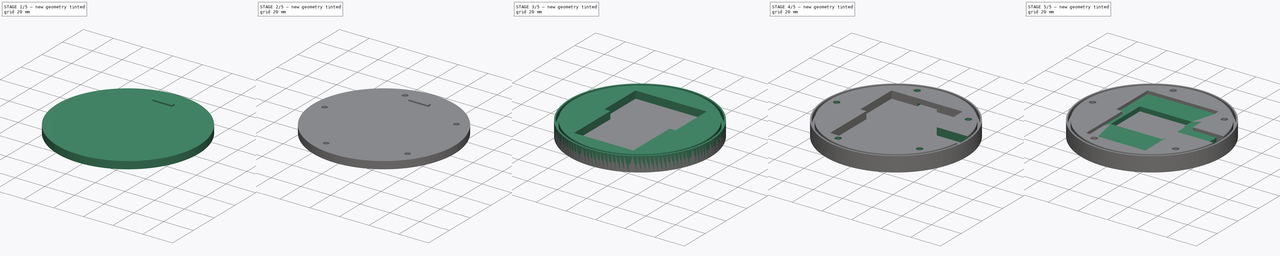
[diagram: build sequence overview — one tinted view per stage of 5, left to right]
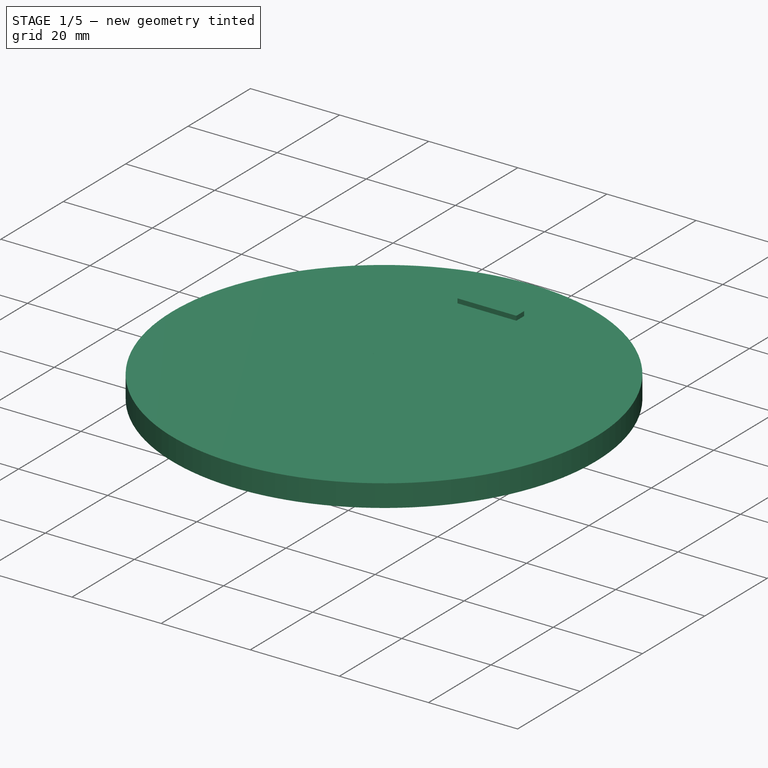
[diagram: stage 1 of 5 — iso view after this stage's code; geometry added in this stage tinted green]
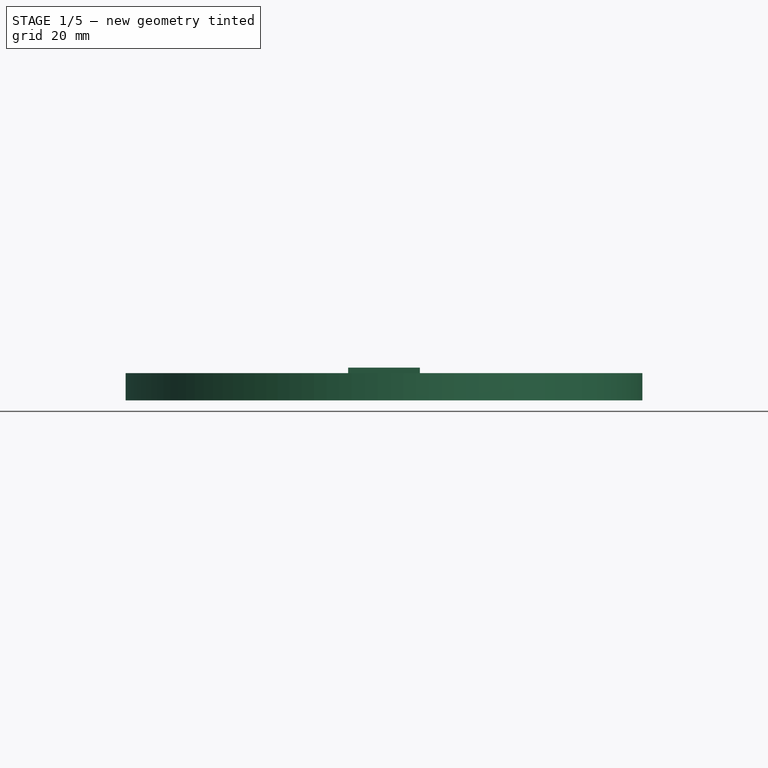
[diagram: stage 1 of 5 — front view after this stage's code; geometry added in this stage tinted green]
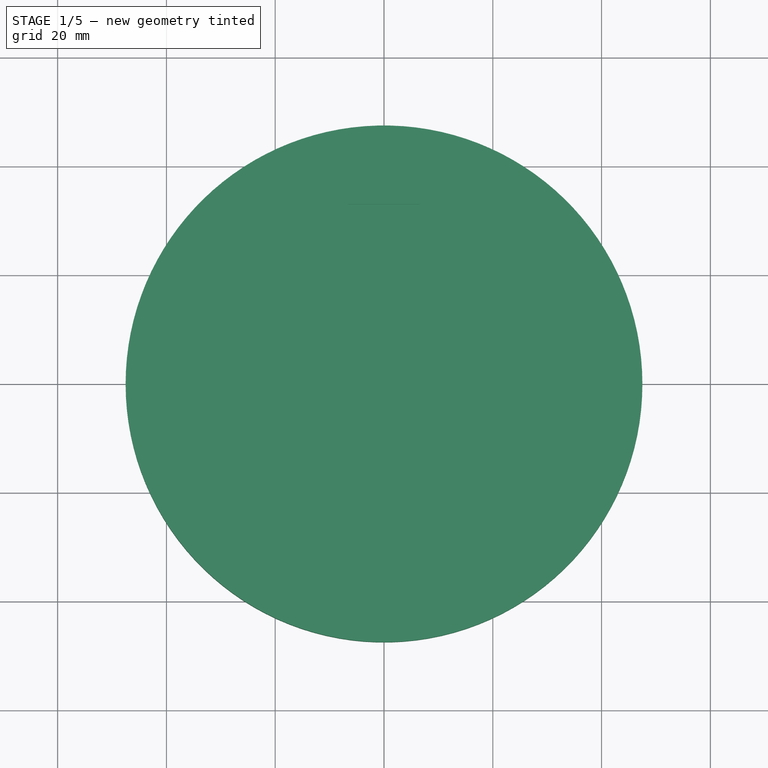
[diagram: stage 1 of 5 — top view after this stage's code; geometry added in this stage tinted green]
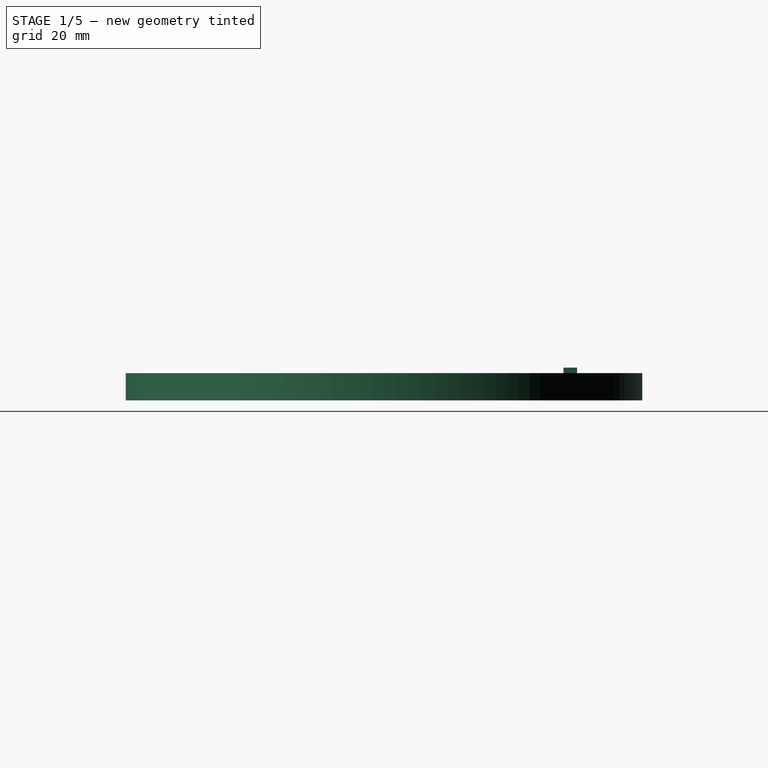
[diagram: stage 1 of 5 — right view after this stage's code; geometry added in this stage tinted green]
FCSTD DOCUMENT  (FreeCAD 0.19R24276 (Git))
Label: NecklaceCase
License: All rights reserved
LicenseURL: http://en.wikipedia.org/wiki/All_rights_reserved
objects: Sketcher::SketchObject×26, PartDesign::Pocket×16, PartDesign::Pad×9, PartDesign::Body×5, Part::Feature×1
note: 82 computed .brp shape members not serialized (recipe doc carries the construction recipe); baked Part::Feature solids carry a one-line shape summary decoded from their .brp

FEATURE [Sketcher::SketchObject] Sketch008
  FullyConstrained = true
  MapMode = 5
  Support = -> [XY_Plane003]
  sketch-geometry (1):
    g0: Circle CenterX=0 CenterY=0 CenterZ=0 NormalX=0 NormalY=0 NormalZ=1 AngleXU=0 Radius=47.5
  constraints (2):
    c: Coincident(g0,g-1)
    c: Diameter(g0) = 95
FEATURE [PartDesign::Pad] Pad004
  Direction = (1,1,1)
  Length = 5
  Length2 = 100
  Profile = -> Sketch008
  Type = 0
FEATURE [PartDesign::Body] Body003  label="attachment layer"
  Group = -> [Sketch008,Pad004,Sketch009,Pocket002,Sketch015,Pocket008,Sketch022,Pad006]
  Origin = -> Origin003
  Tip = -> Pad006
FEATURE [Sketcher::SketchObject] Sketch024
  FullyConstrained = true
  MapMode = 5
  Support = -> [XY_Plane004]
  sketch-geometry (1):
    g0: Circle CenterX=0 CenterY=0 CenterZ=0 NormalX=0 NormalY=0 NormalZ=1 AngleXU=0 Radius=47.5
  constraints (2):
    c: Coincident(g0,g-1)
    c: Diameter(g0) = 95
FEATURE [PartDesign::Pad] Pad007
  Direction = (1,1,1)
  Length = 5
  Length2 = 100
  Profile = -> Sketch024
  Type = 0
FEATURE [Sketcher::SketchObject] Sketch025
  FullyConstrained = true
  MapMode = 5
  Placement = pos=(0,0,5) rot=(0,0,1;0rad)
  Support = -> [Pad007]
  sketch-geometry (4):
    g0: LineSegment StartX=-6.75 StartY=23 StartZ=0 EndX=6.75 EndY=23 EndZ=0
    g1: LineSegment StartX=6.75 StartY=23 StartZ=0 EndX=6.75 EndY=-23 EndZ=0
    g2: LineSegment StartX=6.75 StartY=-23 StartZ=0 EndX=-6.75 EndY=-23 EndZ=0
    g3: LineSegment StartX=-6.75 StartY=-23 StartZ=0 EndX=-6.75 EndY=23 EndZ=0
  constraints (10):
    c: Coincident(g0,g1)
    c: Coincident(g1,g2)
    c: Coincident(g2,g3)
    c: Coincident(g3,g0)
    c: Horizontal(g0)
    c: Vertical(g1)
    c: DistanceX(g2,g2) = 13.5
    c: DistanceY(g1,g1) = 46
    c: Symmetric(g0,g2,g-1)
    c: Symmetric(g2,g1,g-2)
FEATURE [PartDesign::Pocket] Pocket014
  BaseFeature = -> Pad007
  Length = 2.5
  Length2 = 100
  Profile = -> Sketch025
  Type = 0
FEATURE [Sketcher::SketchObject] Sketch026
  FullyConstrained = true
  MapMode = 5
  Placement = pos=(0,0,5) rot=(0,0,1;0rad)
  Support = -> [Pocket014]
  sketch-geometry (5):
    g0: Circle CenterX=-40 CenterY=0 CenterZ=0 NormalX=0 NormalY=0 NormalZ=1 AngleXU=0 Radius=1.75
    g1: Circle CenterX=-12.364 CenterY=38.0412 CenterZ=0 NormalX=0 NormalY=0 NormalZ=1 AngleXU=0 Radius=1.75
    g2: Circle CenterX=32.3566 CenterY=23.5171 CenterZ=0 NormalX=0 NormalY=0 NormalZ=1 AngleXU=0 Radius=1.75
    g3: Circle CenterX=32.3668 CenterY=-23.5029 CenterZ=0 NormalX=0 NormalY=0 NormalZ=1 AngleXU=0 Radius=1.75
    g4: Circle CenterX=-12.3474 CenterY=-38.0466 CenterZ=0 NormalX=0 NormalY=0 NormalZ=1 AngleXU=0 Radius=1.75
  constraints (15):
    c: Diameter(g0) = 3.5
    c: Diameter(g1) = 3.5
    c: Diameter(g2) = 3.5
    c: Diameter(g3) = 3.5
    c: Diameter(g4) = 3.5
    c: DistanceY(g-1,g0) = 0
    c: Distance(g-1,g0) = 40
    c: Distance(g-1,g1) = 40
    c: Distance(g2,g-1) = 40
    c: Distance(g-1,g3) = 40
    c: Distance(g4,g-1) = 40
    c: Distance(g0,g1) = 47.02
    c: Distance(g1,g2) = 47.02
    c: Distance(g2,g3) = 47.02
    c: Distance(g4,g3) = 47.02
FEATURE [PartDesign::Pocket] Pocket015
  BaseFeature = -> Pocket014
  Length = 5
  Length2 = 100
  Profile = -> Sketch026
  Type = 0
FEATURE [Sketcher::SketchObject] Sketch023
  FullyConstrained = true
  MapMode = 5
  Placement = pos=(0,0,5) rot=(0,0,1;0rad)
  Support = -> [Pocket015]
  sketch-geometry (4):
    g0: LineSegment StartX=-6.6 StartY=35.5 StartZ=0 EndX=6.6 EndY=35.5 EndZ=0
    g1: LineSegment StartX=6.6 StartY=35.5 StartZ=0 EndX=6.6 EndY=33 EndZ=0
    g2: LineSegment StartX=6.6 StartY=33 StartZ=0 EndX=-6.6 EndY=33 EndZ=0
    g3: LineSegment StartX=-6.6 StartY=33 StartZ=0 EndX=-6.6 EndY=35.5 EndZ=0
  constraints (11):
    c: Coincident(g0,g1)
    c: Coincident(g1,g2)
    c: Coincident(g2,g3)
    c: Coincident(g3,g0)
    c: Horizontal(g0)
    c: Vertical(g1)
    c: Vertical(g3)
    c: DistanceX(g0,g0) = 13.2
    c: DistanceY(g1,g1) = 2.5
    c: Symmetric(g2,g1,g-2)
    c: DistanceY(g-1,g1) = 33
FEATURE [PartDesign::Pad] Pad008
  BaseFeature = -> Pocket015
  Direction = (1,1,1)
  Length = 1
  Length2 = 100
  Profile = -> Sketch023
  Type = 0
FEATURE [PartDesign::Body] Body004  label="attachment magnetic"
  Group = -> [Sketch024,Pad007,Sketch025,Pocket014,Sketch026,Pocket015,Sketch023,Pad008]
  Origin = -> Origin004
  Tip = -> Pad008
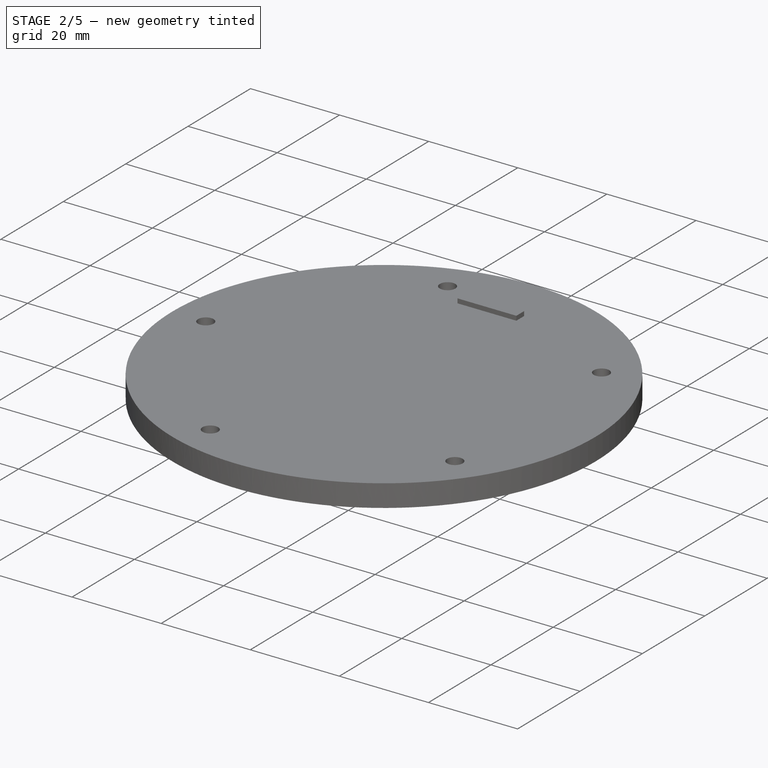
[diagram: stage 2 of 5 — iso view after this stage's code; geometry added in this stage tinted green]
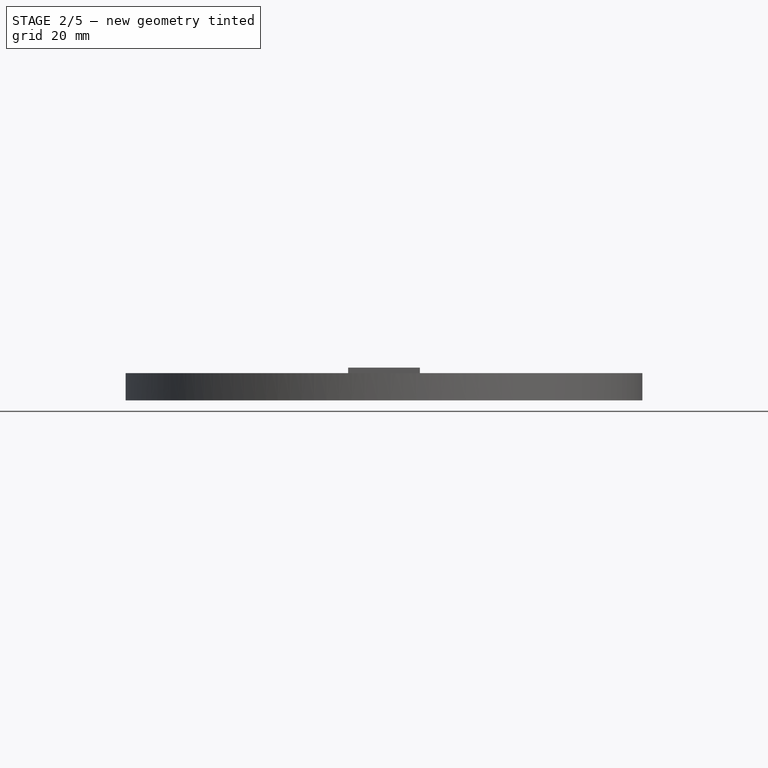
[diagram: stage 2 of 5 — front view after this stage's code; geometry added in this stage tinted green]
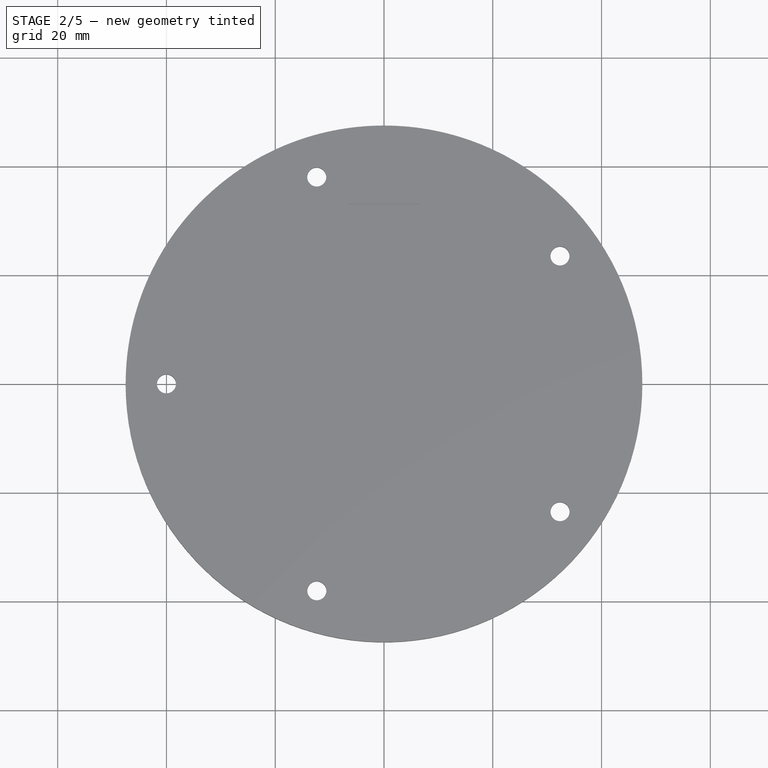
[diagram: stage 2 of 5 — top view after this stage's code; geometry added in this stage tinted green]
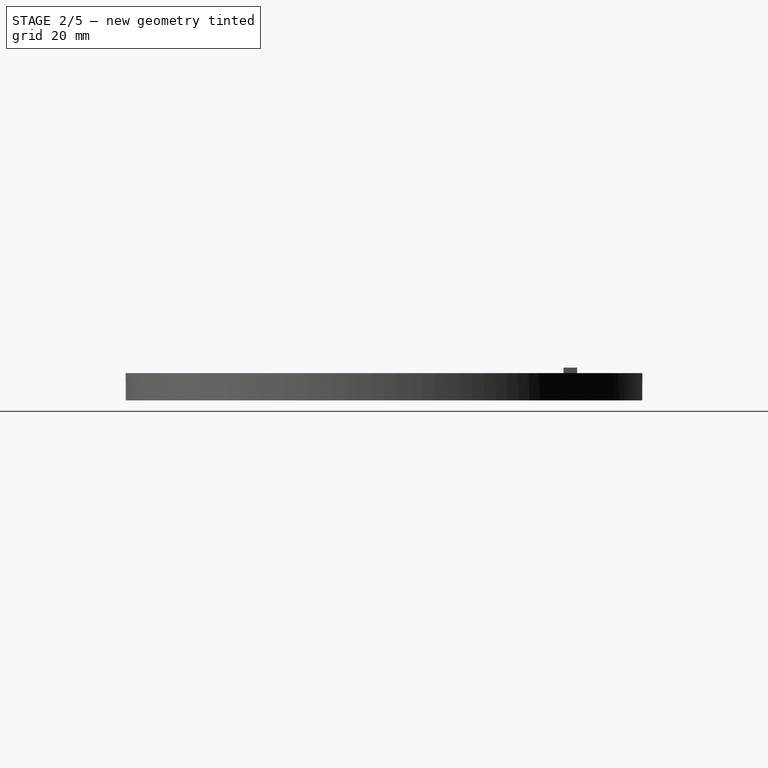
[diagram: stage 2 of 5 — right view after this stage's code; geometry added in this stage tinted green]
FEATURE [Sketcher::SketchObject] Sketch003
  FullyConstrained = true
  MapMode = 5
  Support = -> [XY_Plane001]
  sketch-geometry (1):
    g0: Circle CenterX=0 CenterY=0 CenterZ=0 NormalX=0 NormalY=0 NormalZ=1 AngleXU=0 Radius=47.5
  constraints (2):
    c: Coincident(g-1,g0)
    c: Diameter(g0) = 95
FEATURE [PartDesign::Pad] Pad001
  Direction = (1,1,1)
  Length = 2
  Length2 = 100
  Profile = -> Sketch003
  Type = 0
FEATURE [Sketcher::SketchObject] Sketch009
  FullyConstrained = true
  MapMode = 5
  Placement = pos=(0,0,5) rot=(0,0,1;0rad)
  Support = -> [Pad004]
  sketch-geometry (2):
    g0: Circle CenterX=-70 CenterY=0 CenterZ=0 NormalX=0 NormalY=0 NormalZ=1 AngleXU=0 Radius=40
    g1: Circle CenterX=-70 CenterY=0 CenterZ=0 NormalX=0 NormalY=0 NormalZ=1 AngleXU=0 Radius=35
  constraints (6):
    c: PointOnObject(g0,g-1)
    c: PointOnObject(g1,g-1)
    c: Diameter(g0) = 80
    c: Diameter(g1) = 70
    c: DistanceX(g0,g-1) = 70
    c: DistanceX(g1,g-1) = 70
FEATURE [PartDesign::Pocket] Pocket002
  BaseFeature = -> Pad004
  Length = 3
  Length2 = 100
  Profile = -> Sketch009
  Type = 0
FEATURE [Sketcher::SketchObject] Sketch012
  FullyConstrained = true
  MapMode = 5
  Placement = pos=(0,0,2) rot=(0,0,1;0rad)
  Support = -> [Pad001]
  sketch-geometry (6):
    g0: Circle CenterX=-12.364 CenterY=38.0412 CenterZ=0 NormalX=0 NormalY=0 NormalZ=1 AngleXU=0 Radius=1.75
    g1: Circle CenterX=-12.3474 CenterY=-38.0466 CenterZ=0 NormalX=0 NormalY=0 NormalZ=1 AngleXU=0 Radius=1.75
    g2: Circle CenterX=-40 CenterY=0 CenterZ=0 NormalX=0 NormalY=0 NormalZ=1 AngleXU=0 Radius=1.75
    g3: Circle CenterX=32.3566 CenterY=23.5171 CenterZ=0 NormalX=0 NormalY=0 NormalZ=1 AngleXU=0 Radius=1.75
    g4: Circle CenterX=32.3668 CenterY=-23.5029 CenterZ=0 NormalX=0 NormalY=0 NormalZ=1 AngleXU=0 Radius=1.75
    g5: Circle CenterX=0 CenterY=0 CenterZ=0 NormalX=0 NormalY=0 NormalZ=1 AngleXU=0 Radius=40
  constraints (17):
    c: PointOnObject(g2,g-1)
    c: Diameter(g2) = 3.5
    c: Diameter(g3) = 3.5
    c: Diameter(g0) = 3.5
    c: Diameter(g4) = 3.5
    c: Diameter(g1) = 3.5
    c: DistanceX(g2,g-1) = 40
    c: Radius(g5) = 40
    c: Coincident(g5,g-1)
    c: Distance(g0,g-1) = 40
    c: Distance(g-1,g3) = 40
    c: Distance(g-1,g4) = 40
    c: Distance(g-1,g1) = 40
    c: Distance(g2,g0) = 47.02
    c: Distance(g0,g3) = 47.02
    c: Distance(g3,g4) = 47.02
    c: Distance(g4,g1) = 47.02
FEATURE [PartDesign::Pocket] Pocket005
  BaseFeature = -> Pad001
  Length = 5
  Length2 = 100
  Profile = -> Sketch012
  Type = 0
FEATURE [Sketcher::SketchObject] Sketch015
  FullyConstrained = true
  MapMode = 5
  Placement = pos=(0,0,5) rot=(0,0,1;0rad)
  Support = -> [Pocket002]
  sketch-geometry (5):
    g0: Circle CenterX=-40 CenterY=0 CenterZ=0 NormalX=0 NormalY=0 NormalZ=1 AngleXU=0 Radius=1.75
    g1: Circle CenterX=-12.364 CenterY=38.0412 CenterZ=0 NormalX=0 NormalY=0 NormalZ=1 AngleXU=0 Radius=1.75
    g2: Circle CenterX=32.3566 CenterY=23.5171 CenterZ=0 NormalX=0 NormalY=0 NormalZ=1 AngleXU=0 Radius=1.75
    g3: Circle CenterX=32.3668 CenterY=-23.5029 CenterZ=0 NormalX=0 NormalY=0 NormalZ=1 AngleXU=0 Radius=1.75
    g4: Circle CenterX=-12.3474 CenterY=-38.0466 CenterZ=0 NormalX=0 NormalY=0 NormalZ=1 AngleXU=0 Radius=1.75
  constraints (15):
    c: Diameter(g0) = 3.5
    c: Diameter(g1) = 3.5
    c: Diameter(g2) = 3.5
    c: Diameter(g3) = 3.5
    c: Diameter(g4) = 3.5
    c: DistanceY(g-1,g0) = 0
    c: Distance(g-1,g0) = 40
    c: Distance(g-1,g1) = 40
    c: Distance(g2,g-1) = 40
    c: Distance(g-1,g3) = 40
    c: Distance(g4,g-1) = 40
    c: Distance(g0,g1) = 47.02
    c: Distance(g1,g2) = 47.02
    c: Distance(g2,g3) = 47.02
    c: Distance(g4,g3) = 47.02
FEATURE [PartDesign::Pocket] Pocket008
  BaseFeature = -> Pocket002
  Length = 5
  Length2 = 100
  Profile = -> Sketch015
  Type = 0
FEATURE [PartDesign::Body] Body001  label="top"
  Group = -> [Sketch003,Pad001,Sketch012,Pocket005,Sketch021,Pocket013]
  Origin = -> Origin001
  Placement = pos=(0,0,23) rot=(0,0,1;0rad)
  Tip = -> Pocket013
FEATURE [Sketcher::SketchObject] Sketch022
  FullyConstrained = true
  MapMode = 5
  Placement = pos=(0,0,5) rot=(0,0,1;0rad)
  Support = -> [Pocket008]
  sketch-geometry (4):
    g0: LineSegment StartX=-6.6 StartY=35.5 StartZ=0 EndX=6.6 EndY=35.5 EndZ=0
    g1: LineSegment StartX=6.6 StartY=35.5 StartZ=0 EndX=6.6 EndY=33 EndZ=0
    g2: LineSegment StartX=6.6 StartY=33 StartZ=0 EndX=-6.6 EndY=33 EndZ=0
    g3: LineSegment StartX=-6.6 StartY=33 StartZ=0 EndX=-6.6 EndY=35.5 EndZ=0
  constraints (11):
    c: Coincident(g0,g1)
    c: Coincident(g1,g2)
    c: Coincident(g2,g3)
    c: Coincident(g3,g0)
    c: Horizontal(g0)
    c: Vertical(g1)
    c: Vertical(g3)
    c: DistanceX(g0,g0) = 13.2
    c: DistanceY(g1,g1) = 2.5
    c: Symmetric(g2,g1,g-2)
    c: DistanceY(g-1,g1) = 33
FEATURE [PartDesign::Pad] Pad006
  BaseFeature = -> Pocket008
  Direction = (1,1,1)
  Length = 1
  Length2 = 100
  Profile = -> Sketch022
  Type = 0
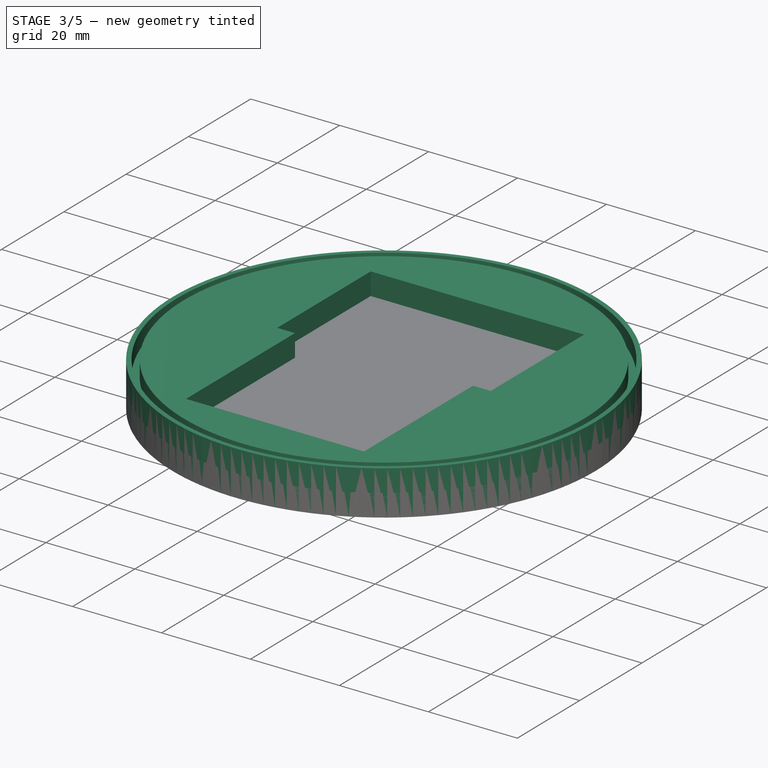
[diagram: stage 3 of 5 — iso view after this stage's code; geometry added in this stage tinted green]
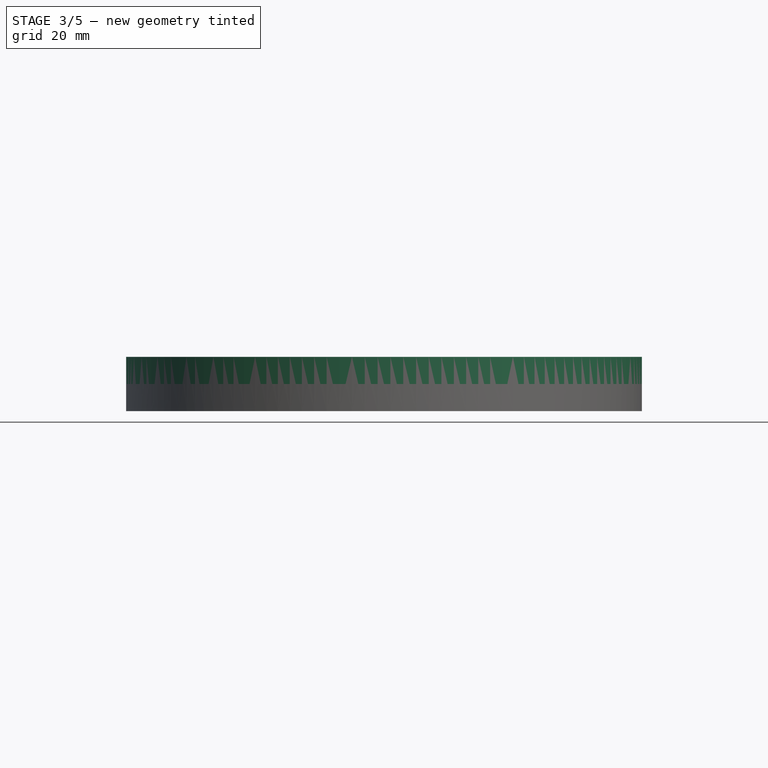
[diagram: stage 3 of 5 — front view after this stage's code; geometry added in this stage tinted green]
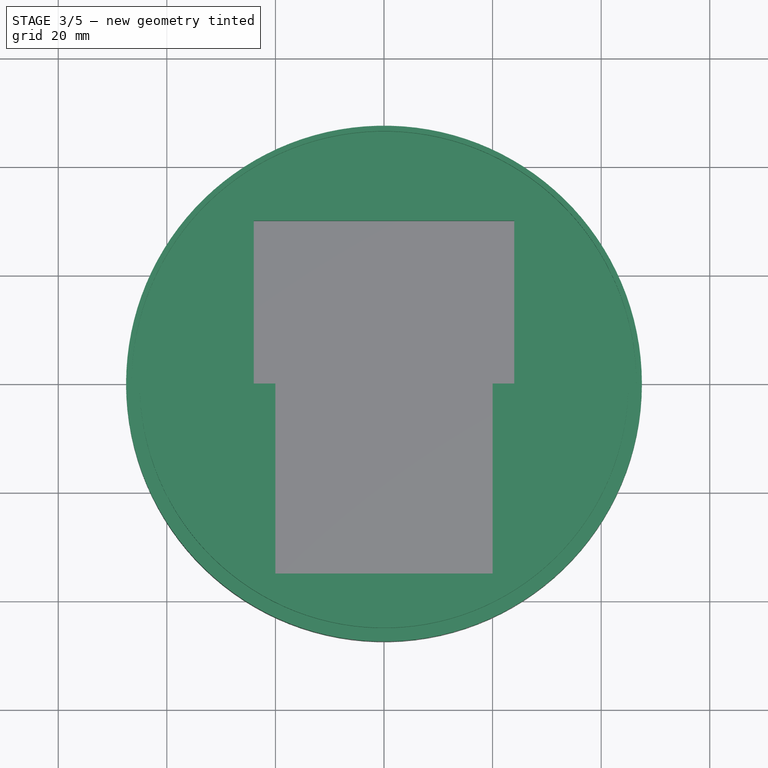
[diagram: stage 3 of 5 — top view after this stage's code; geometry added in this stage tinted green]
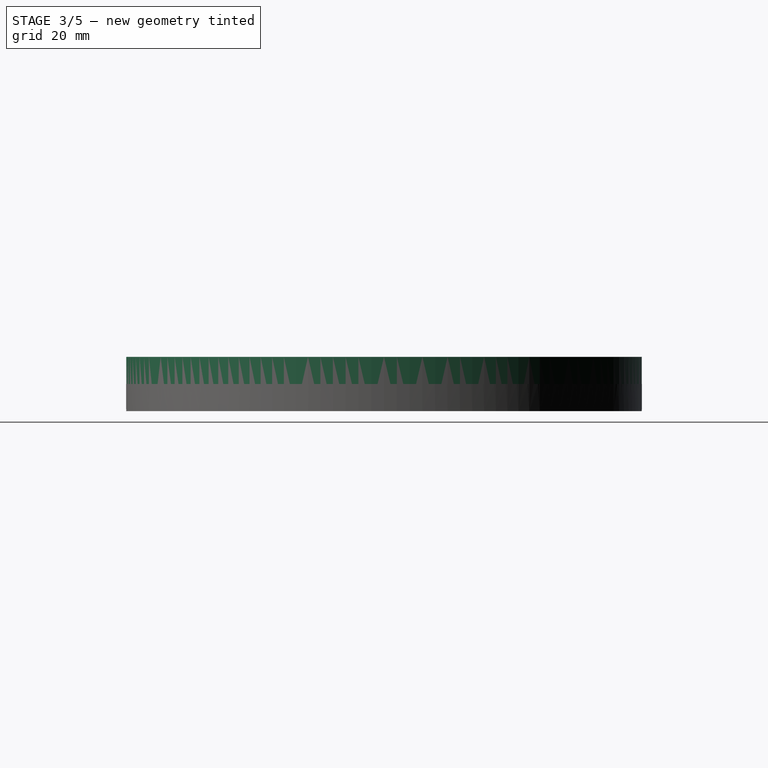
[diagram: stage 3 of 5 — right view after this stage's code; geometry added in this stage tinted green]
FEATURE [Sketcher::SketchObject] Sketch004
  FullyConstrained = true
  MapMode = 5
  Support = -> [XY_Plane]
  sketch-geometry (1):
    g0: Circle CenterX=0 CenterY=0 CenterZ=0 NormalX=0 NormalY=0 NormalZ=1 AngleXU=0 Radius=47.5
  constraints (2):
    c: Diameter(g0) = 95
    c: Coincident(g0,g-1)
FEATURE [Sketcher::SketchObject] Sketch005
  FullyConstrained = true
  MapMode = 5
  Support = -> [XY_Plane002]
  sketch-geometry (1):
    g0: Circle CenterX=0 CenterY=0 CenterZ=0 NormalX=0 NormalY=0 NormalZ=1 AngleXU=0 Radius=47.5
  constraints (2):
    c: Coincident(g0,g-1)
    c: Diameter(g0) = 95
FEATURE [PartDesign::Pad] Pad002
  Direction = (1,1,1)
  Length = 10
  Length2 = 100
  Profile = -> Sketch005
  Type = 0
FEATURE [Sketcher::SketchObject] Sketch006
  FullyConstrained = true
  MapMode = 5
  Placement = pos=(0,0,10) rot=(0,0,1;0rad)
  Support = -> [Pad002]
  sketch-geometry (1):
    g0: Circle CenterX=0 CenterY=0 CenterZ=0 NormalX=0 NormalY=0 NormalZ=1 AngleXU=0 Radius=46.5
  constraints (2):
    c: Coincident(g0,g-1)
    c: Diameter(g0) = 93
FEATURE [PartDesign::Pocket] Pocket001
  BaseFeature = -> Pad002
  Length = 3.5
  Length2 = 100
  Profile = -> Sketch006
  Type = 0
FEATURE [Sketcher::SketchObject] Sketch007
  FullyConstrained = true
  MapMode = 5
  Placement = pos=(0,0,6.5) rot=(0,0,1;0rad)
  Support = -> [Pocket001]
  sketch-geometry (1):
    g0: Circle CenterX=0 CenterY=0 CenterZ=0 NormalX=0 NormalY=0 NormalZ=1 AngleXU=0 Radius=45
  constraints (2):
    c: Coincident(g0,g-1)
    c: Diameter(g0) = 90
FEATURE [PartDesign::Pad] Pad003
  BaseFeature = -> Pocket001
  Direction = (1,1,1)
  Length = 3.5
  Length2 = 100
  Profile = -> Sketch007
  Type = 0
FEATURE [Sketcher::SketchObject] Sketch010
  FullyConstrained = true
  MapMode = 5
  Placement = pos=(0,0,10) rot=(0,0,1;0rad)
  Support = -> [Pad003]
  sketch-geometry (8):
    g0: LineSegment StartX=20 StartY=0 StartZ=0 EndX=20 EndY=-35 EndZ=0
    g1: LineSegment StartX=20 StartY=-35 StartZ=0 EndX=-20 EndY=-35 EndZ=0
    g2: LineSegment StartX=-20 StartY=-35 StartZ=0 EndX=-20 EndY=0 EndZ=0
    g3: LineSegment StartX=-24 StartY=30 StartZ=0 EndX=24 EndY=30 EndZ=0
    g4: LineSegment StartX=24 StartY=30 StartZ=0 EndX=24 EndY=0 EndZ=0
    g5: LineSegment StartX=-24 StartY=0 StartZ=0 EndX=-24 EndY=30 EndZ=0
    g6: LineSegment StartX=20 StartY=0 StartZ=0 EndX=24 EndY=0 EndZ=0
    g7: LineSegment StartX=-24 StartY=0 StartZ=0 EndX=-20 EndY=0 EndZ=0
  constraints (24):
    c: Coincident(g0,g1)
    c: Coincident(g1,g2)
    c: Horizontal(g1)
    c: Vertical(g0)
    c: Vertical(g2)
    c: DistanceY(g0,g0) = 35
    c: DistanceX(g2,g0) = 40
    c: Coincident(g3,g4)
    c: Coincident(g5,g3)
    c: Horizontal(g3)
    c: Vertical(g4)
    c: Vertical(g5)
    c: DistanceY(g4,g4) = 30
    c: DistanceX(g3,g3) = 48
    c: DistanceX(g5,g-1) = 24
    c: DistanceX(g2,g-1) = 20
    c: DistanceY(g2,g-1) = 0
    c: DistanceY(g-1,g5) = 0
    c: Coincident(g6,g0)
    c: Coincident(g6,g4)
    c: Horizontal(g6)
    c: Coincident(g7,g5)
    c: Coincident(g7,g2)
    c: DistanceY(g4,g-1) = 0
FEATURE [PartDesign::Pocket] Pocket003
  BaseFeature = -> Pad003
  Length = 10
  Length2 = 100
  Profile = -> Sketch010
  Type = 0
FEATURE [PartDesign::Body] Body002  label="bottom"
  Group = -> [Sketch005,Pad002,Sketch006,Pocket001,Sketch007,Pad003,Sketch010,Pocket003,Sketch011,Pocket004,Sketch014,Pocket007,Sketch018,Pocket011,Sketch019,Pocket012,Sketch020,Pad005]
  Origin = -> Origin002
  Placement = pos=(0,0,5) rot=(0,0,1;0rad)
  Tip = -> Pad005
FEATURE [Sketcher::SketchObject] Sketch021
  FullyConstrained = true
  MapMode = 5
  Placement = pos=(0,0,2) rot=(0,0,1;0rad)
  Support = -> [Pocket005]
  sketch-geometry (8):
    g0: LineSegment StartX=-9 StartY=12 StartZ=0 EndX=16 EndY=12 EndZ=0
    g1: LineSegment StartX=16 StartY=12 StartZ=0 EndX=16 EndY=8.5 EndZ=0
    g2: LineSegment StartX=16 StartY=8.5 StartZ=0 EndX=-9 EndY=8.5 EndZ=0
    g3: LineSegment StartX=-9 StartY=8.5 StartZ=0 EndX=-9 EndY=12 EndZ=0
    g4: LineSegment StartX=-4 StartY=-8.5 StartZ=0 EndX=16 EndY=-8.5 EndZ=0
    g5: LineSegment StartX=16 StartY=-8.5 StartZ=0 EndX=16 EndY=-12 EndZ=0
    g6: LineSegment StartX=16 StartY=-12 StartZ=0 EndX=-4 EndY=-12 EndZ=0
    g7: LineSegment StartX=-4 StartY=-12 StartZ=0 EndX=-4 EndY=-8.5 EndZ=0
  constraints (24):
    c: Coincident(g0,g1)
    c: Coincident(g1,g2)
    c: Coincident(g2,g3)
    c: Coincident(g3,g0)
    c: Horizontal(g0)
    c: Horizontal(g2)
    c: Vertical(g1)
    c: Vertical(g3)
    c: Coincident(g4,g5)
    c: Coincident(g5,g6)
    c: Coincident(g6,g7)
    c: Coincident(g7,g4)
    c: Horizontal(g4)
    c: Horizontal(g6)
    c: Vertical(g5)
    c: Vertical(g7)
    c: DistanceX(g0,g0) = 25
    c: DistanceX(g4,g4) = 20
    c: DistanceX(g-1,g4) = 16
    c: DistanceX(g-1,g1) = 16
    c: DistanceY(g4,g-1) = 8.5
    c: DistanceY(g-1,g2) = 8.5
    c: DistanceY(g5,g5) = 3.5
    c: DistanceY(g1,g1) = 3.5
FEATURE [PartDesign::Pocket] Pocket013
  BaseFeature = -> Pocket005
  Length = 5
  Length2 = 100
  Profile = -> Sketch021
  Type = 0
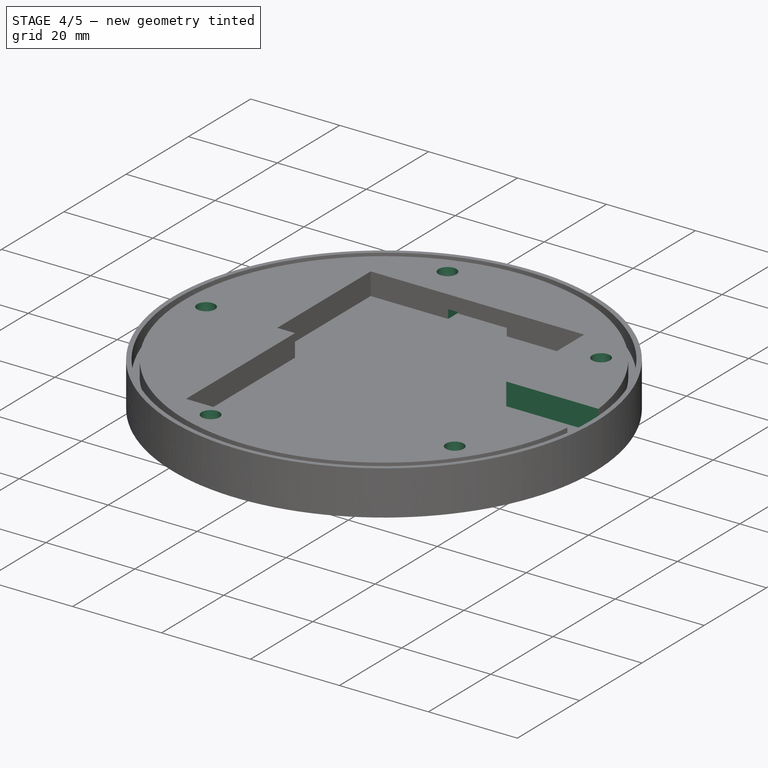
[diagram: stage 4 of 5 — iso view after this stage's code; geometry added in this stage tinted green]
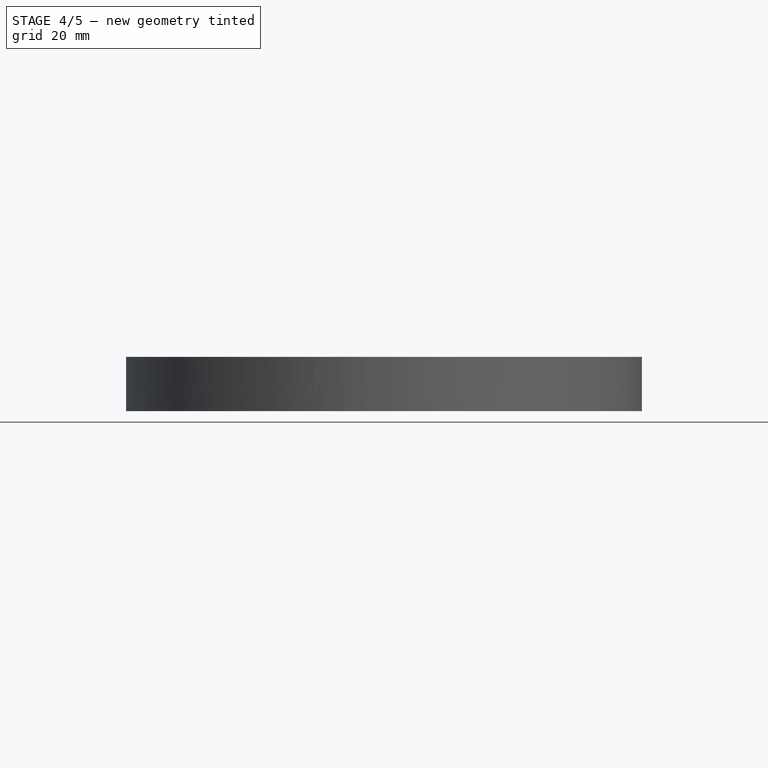
[diagram: stage 4 of 5 — front view after this stage's code; geometry added in this stage tinted green]
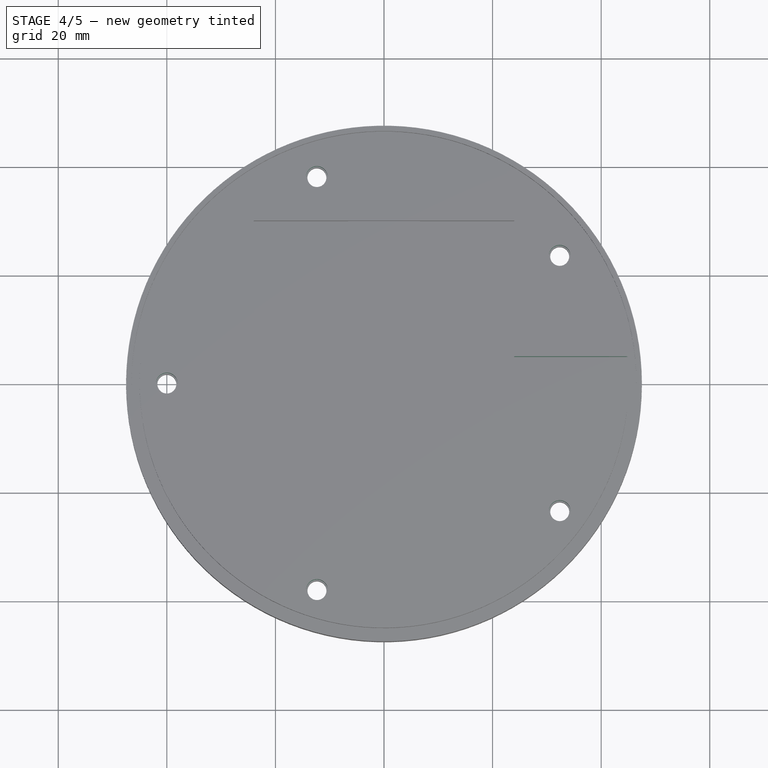
[diagram: stage 4 of 5 — top view after this stage's code; geometry added in this stage tinted green]
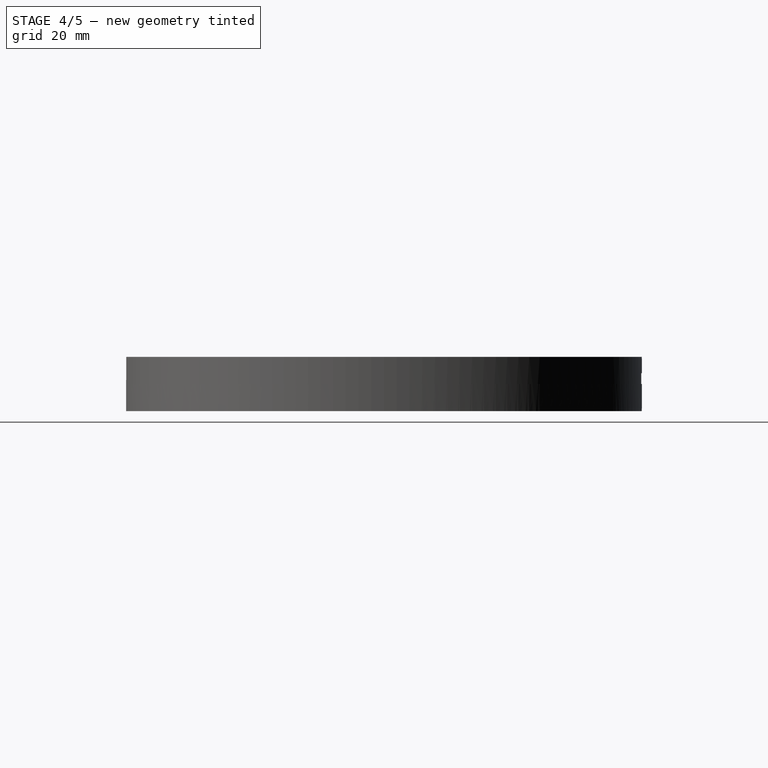
[diagram: stage 4 of 5 — right view after this stage's code; geometry added in this stage tinted green]
FEATURE [Sketcher::SketchObject] Sketch011
  FullyConstrained = true
  MapMode = 5
  Placement = pos=(0,0,10) rot=(0,0,1;0rad)
  Support = -> [Pocket003]
  sketch-geometry (4):
    g0: LineSegment StartX=20 StartY=5 StartZ=0 EndX=45 EndY=5 EndZ=0
    g1: LineSegment StartX=45 StartY=5 StartZ=0 EndX=45 EndY=-5 EndZ=0
    g2: LineSegment StartX=45 StartY=-5 StartZ=0 EndX=20 EndY=-5 EndZ=0
    g3: LineSegment StartX=20 StartY=-5 StartZ=0 EndX=20 EndY=5 EndZ=0
  constraints (12):
    c: Coincident(g0,g1)
    c: Coincident(g1,g2)
    c: Coincident(g2,g3)
    c: Coincident(g3,g0)
    c: Horizontal(g0)
    c: Horizontal(g2)
    c: Vertical(g1)
    c: Vertical(g3)
    c: DistanceY(g1,g1) = 10
    c: DistanceX(g-1,g0) = 45
    c: DistanceX(g-1,g0) = 20
    c: DistanceY(g-1,g0) = 5
FEATURE [PartDesign::Pocket] Pocket004
  BaseFeature = -> Pocket003
  Length = 10
  Length2 = 100
  Profile = -> Sketch011
  Type = 0
FEATURE [Sketcher::SketchObject] Sketch014
  FullyConstrained = true
  MapMode = 5
  Placement = pos=(0,0,10) rot=(0,0,1;0rad)
  Support = -> [Pocket004]
  sketch-geometry (5):
    g0: Circle CenterX=-40 CenterY=0 CenterZ=0 NormalX=0 NormalY=0 NormalZ=1 AngleXU=0 Radius=2
    g1: Circle CenterX=-12.364 CenterY=38.0412 CenterZ=0 NormalX=0 NormalY=0 NormalZ=1 AngleXU=0 Radius=2
    g2: Circle CenterX=32.3566 CenterY=23.5171 CenterZ=0 NormalX=0 NormalY=0 NormalZ=1 AngleXU=0 Radius=2
    g3: Circle CenterX=32.3668 CenterY=-23.5029 CenterZ=0 NormalX=0 NormalY=0 NormalZ=1 AngleXU=0 Radius=2
    g4: Circle CenterX=-12.3474 CenterY=-38.0466 CenterZ=0 NormalX=0 NormalY=0 NormalZ=1 AngleXU=0 Radius=2
  constraints (15):
    c: Diameter(g0) = 4
    c: Diameter(g1) = 4
    c: Diameter(g2) = 4
    c: Diameter(g3) = 4
    c: Diameter(g4) = 4
    c: DistanceY(g-1,g0) = 0
    c: Distance(g0,g-1) = 40
    c: Distance(g1,g-1) = 40
    c: Distance(g2,g-1) = 40
    c: Distance(g3,g-1) = 40
    c: Distance(g-1,g4) = 40
    c: Distance(g0,g1) = 47.02
    c: Distance(g1,g2) = 47.02
    c: Distance(g2,g3) = 47.02
    c: Distance(g3,g4) = 47.02
FEATURE [PartDesign::Pocket] Pocket007
  BaseFeature = -> Pocket004
  Length = 10
  Length2 = 100
  Profile = -> Sketch014
  Type = 0
FEATURE [PartDesign::Body] Body
  Group = -> [Sketch,Pad,Sketch002,Pocket,Sketch004,Sketch013,Pocket006,Sketch016,Pocket009,Sketch017,Pocket010]
  Origin = -> Origin
  Placement = pos=(0,0,15) rot=(0,0,1;0rad)
  Tip = -> Pocket010
FEATURE [Sketcher::SketchObject] Sketch018
  FullyConstrained = true
  MapMode = 5
  Placement = pos=(0,30,0) rot=(1,0,0;1.5708rad)
  Support = -> [Pocket007]
  sketch-geometry (4):
    g0: LineSegment StartX=-6.6 StartY=7 StartZ=0 EndX=6.6 EndY=7 EndZ=0
    g1: LineSegment StartX=6.6 StartY=7 StartZ=0 EndX=6.6 EndY=0 EndZ=0
    g2: LineSegment StartX=6.6 StartY=0 StartZ=0 EndX=-6.6 EndY=0 EndZ=0
    g3: LineSegment StartX=-6.6 StartY=0 StartZ=0 EndX=-6.6 EndY=7 EndZ=0
  constraints (11):
    c: Coincident(g0,g1)
    c: Coincident(g1,g2)
    c: Coincident(g2,g3)
    c: Coincident(g3,g0)
    c: Horizontal(g2)
    c: Vertical(g1)
    c: Vertical(g3)
    c: DistanceX(g0,g0) = 13.2
    c: DistanceY(g1,g1) = 7
    c: DistanceY(g-1,g2) = 0
    c: Symmetric(g0,g0,g-2)
FEATURE [PartDesign::Pocket] Pocket011
  BaseFeature = -> Pocket007
  Length = 12.5
  Length2 = 100
  Profile = -> Sketch018
  Type = 0
FEATURE [Sketcher::SketchObject] Sketch019
  FullyConstrained = true
  MapMode = 5
  Placement = pos=(0,42.5,0) rot=(1,0,0;1.5708rad)
  Support = -> [Pocket011]
  sketch-geometry (4):
    g0: LineSegment StartX=-3.25 StartY=7 StartZ=0 EndX=3.25 EndY=7 EndZ=0
    g1: LineSegment StartX=3.25 StartY=7 StartZ=0 EndX=3.25 EndY=0 EndZ=0
    g2: LineSegment StartX=3.25 StartY=0 StartZ=0 EndX=-3.25 EndY=0 EndZ=0
    g3: LineSegment StartX=-3.25 StartY=0 StartZ=0 EndX=-3.25 EndY=7 EndZ=0
  constraints (12):
    c: Coincident(g0,g1)
    c: Coincident(g1,g2)
    c: Coincident(g2,g3)
    c: Coincident(g3,g0)
    c: Horizontal(g0)
    c: Horizontal(g2)
    c: Vertical(g1)
    c: Vertical(g3)
    c: DistanceY(g1,g1) = 7
    c: DistanceY(g-1,g1) = 0
    c: DistanceX(g0,g0) = 6.5
    c: DistanceX(g-1,g1) = 3.25
FEATURE [PartDesign::Pocket] Pocket012
  BaseFeature = -> Pocket011
  Length = 5
  Length2 = 100
  Profile = -> Sketch019
  Type = 0
FEATURE [Sketcher::SketchObject] Sketch020
  FullyConstrained = true
  MapMode = 5
  Placement = pos=(0,1.5e-15,7) rot=(1,0,0;3.14159rad)
  Support = -> [Pocket012]
  sketch-geometry (4):
    g0: LineSegment StartX=-6.6 StartY=-33 StartZ=0 EndX=6.6 EndY=-33 EndZ=0
    g1: LineSegment StartX=6.6 StartY=-33 StartZ=0 EndX=6.6 EndY=-35.5 EndZ=0
    g2: LineSegment StartX=6.6 StartY=-35.5 StartZ=0 EndX=-6.6 EndY=-35.5 EndZ=0
    g3: LineSegment StartX=-6.6 StartY=-35.5 StartZ=0 EndX=-6.6 EndY=-33 EndZ=0
  constraints (11):
    c: Coincident(g0,g1)
    c: Coincident(g1,g2)
    c: Coincident(g2,g3)
    c: Coincident(g3,g0)
    c: Horizontal(g2)
    c: Vertical(g1)
    c: Vertical(g3)
    c: DistanceX(g2,g2) = 13.2
    c: DistanceY(g1,g1) = 2.5
    c: Symmetric(g0,g0,g-2)
    c: DistanceY(g0,g-1) = 33
FEATURE [PartDesign::Pad] Pad005
  BaseFeature = -> Pocket012
  Direction = (1,1,1)
  Length = 1
  Length2 = 100
  Profile = -> Sketch020
  Type = 0
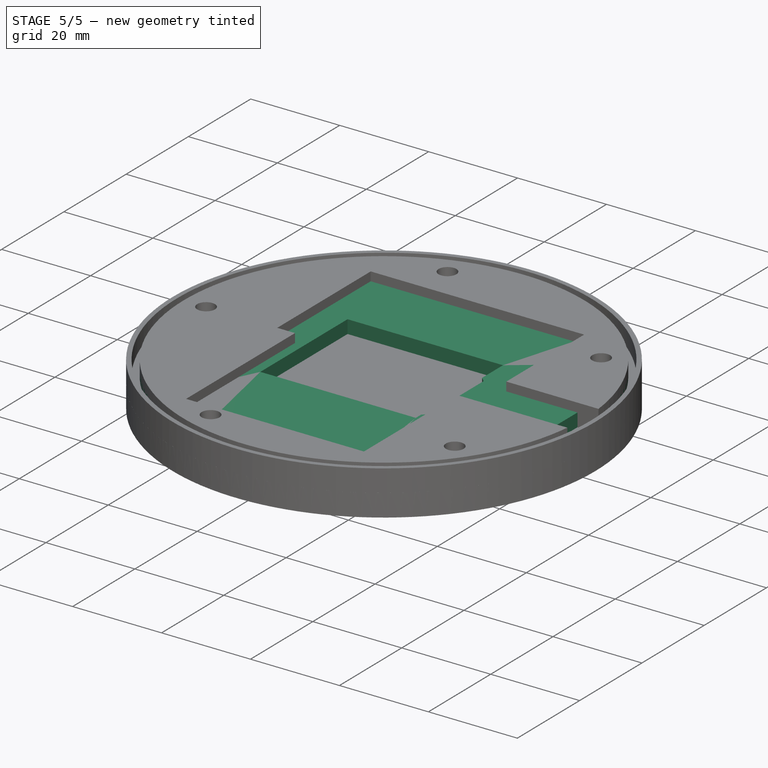
[diagram: stage 5 of 5 — iso view after this stage's code; geometry added in this stage tinted green]
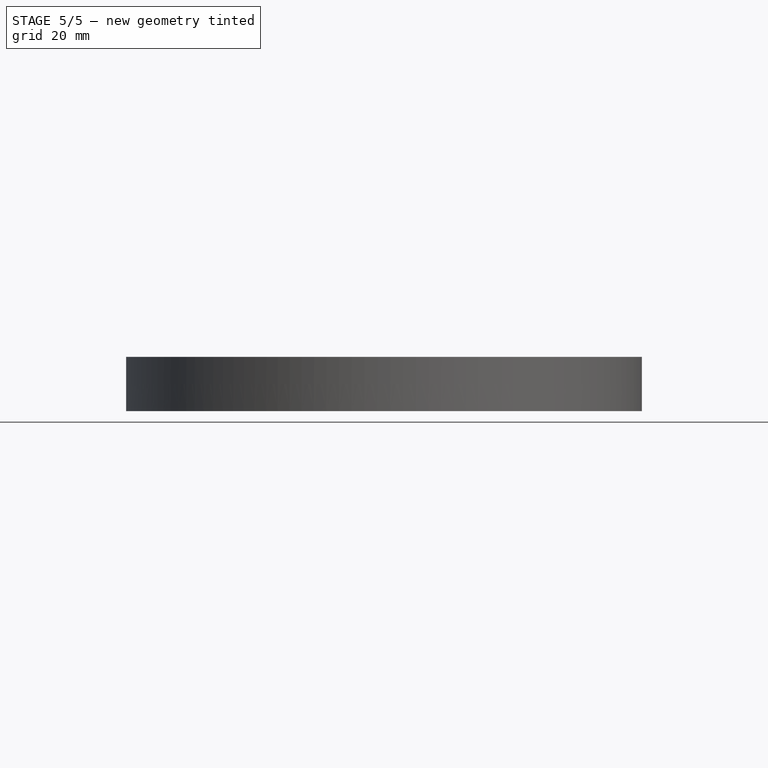
[diagram: stage 5 of 5 — front view after this stage's code; geometry added in this stage tinted green]
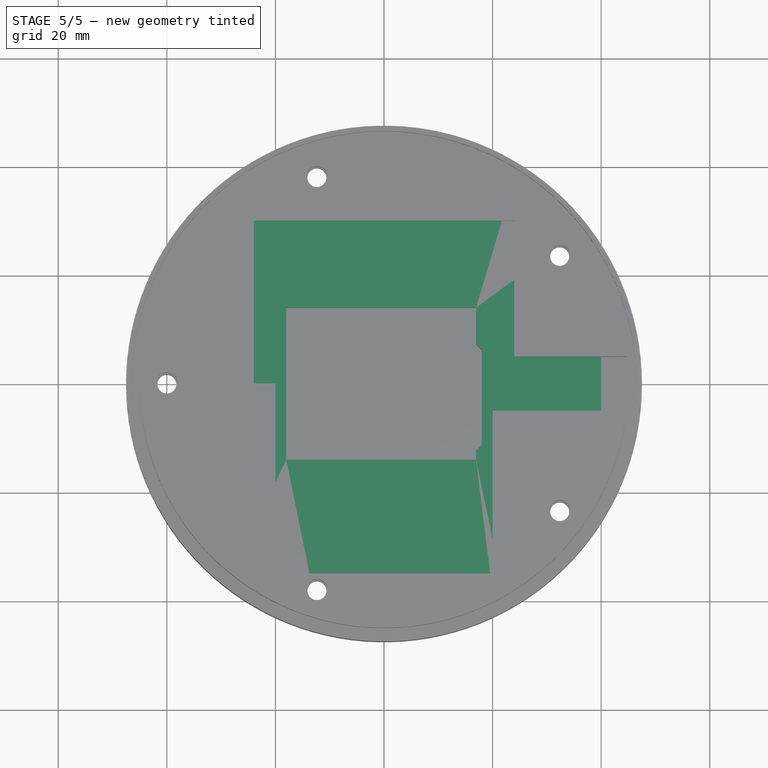
[diagram: stage 5 of 5 — top view after this stage's code; geometry added in this stage tinted green]
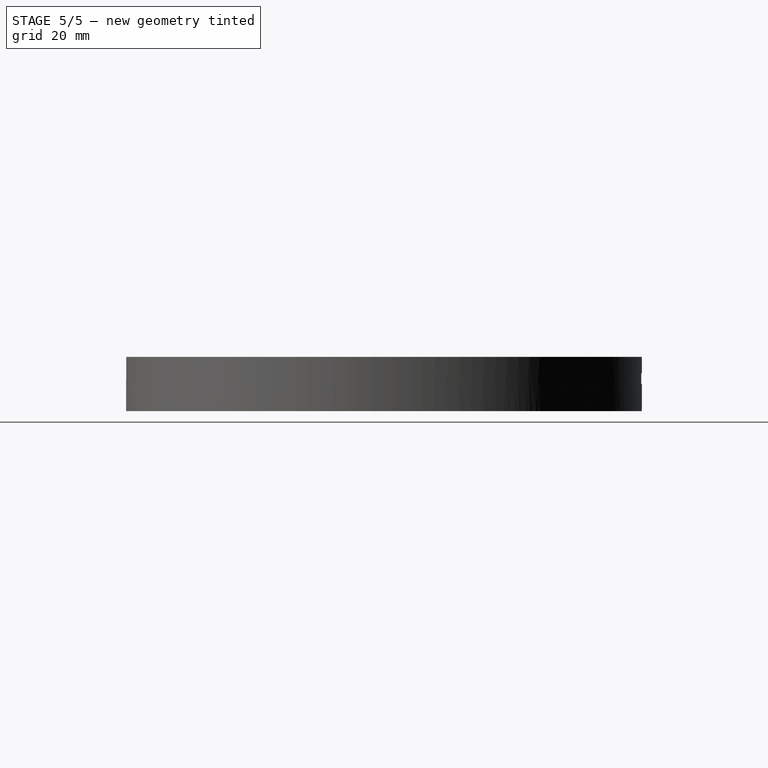
[diagram: stage 5 of 5 — right view after this stage's code; geometry added in this stage tinted green]
FEATURE [Sketcher::SketchObject] Sketch
  FullyConstrained = true
  MapMode = 5
  Support = -> [XY_Plane]
  sketch-geometry (1):
    g0: Circle CenterX=0 CenterY=0 CenterZ=0 NormalX=0 NormalY=0 NormalZ=1 AngleXU=0 Radius=45
  constraints (2):
    c: Coincident(g0,g-1)
    c: Diameter(g0) = 90
FEATURE [PartDesign::Pad] Pad
  Direction = (1,1,1)
  Length = 8
  Length2 = 100
  Profile = -> Sketch
  Type = 0
FEATURE [Part::Feature] Feature  label="Uno_Mini_Limited_Edition"
  Placement = pos=(0,0,17) rot=(0,0,1;0rad)
  shape: bbox 34.22 x 27.05 x 7.785 mm, 4322 faces, 58 solids (baked)
FEATURE [Sketcher::SketchObject] Sketch002
  FullyConstrained = true
  MapMode = 5
  Placement = pos=(0,0,8) rot=(0,0,1;0rad)
  Support = -> [Pad]
  sketch-geometry (8):
    g0: LineSegment StartX=-18 StartY=14 StartZ=0 EndX=-18 EndY=-14 EndZ=0
    g1: LineSegment StartX=-18 StartY=-14 StartZ=0 EndX=16.95 EndY=-14 EndZ=0
    g2: LineSegment StartX=16.95 StartY=-14 StartZ=0 EndX=16.95 EndY=-12.3 EndZ=0
    g3: LineSegment StartX=16.95 StartY=-12.3 StartZ=0 EndX=18 EndY=-11.25 EndZ=0
    g4: LineSegment StartX=18 StartY=-11.25 StartZ=0 EndX=18 EndY=6.25 EndZ=0
    g5: LineSegment StartX=18 StartY=6.25 StartZ=0 EndX=16.95 EndY=7.3 EndZ=0
    g6: LineSegment StartX=16.95 StartY=7.3 StartZ=0 EndX=16.95 EndY=14 EndZ=0
    g7: LineSegment StartX=16.95 StartY=14 StartZ=0 EndX=-18 EndY=14 EndZ=0
  constraints (23):
    c: Coincident(g0,g1)
    c: Coincident(g1,g2)
    c: Coincident(g2,g3)
    c: Coincident(g3,g4)
    c: Coincident(g4,g5)
    c: Coincident(g5,g6)
    c: Coincident(g6,g7)
    c: Coincident(g7,g0)
    c: Horizontal(g7)
    c: Vertical(g0)
    c: Horizontal(g1)
    c: Vertical(g6)
    c: Vertical(g2)
    c: Vertical(g4)
    c: Symmetric(g6,g1,g-1)
    c: DistanceY(g0,g0) = 28
    c: DistanceX(g0,g4) = 36
    c: DistanceY(g4,g4) = 17.5
    c: Angle(g2,g3) = 2.35619
    c: Angle(g5,g6) = 2.35619
    c: DistanceY(g6,g6) = 6.7
    c: DistanceY(g2,g2) = 1.7
    c: DistanceX(g0,g-1) = 18
FEATURE [PartDesign::Pocket] Pocket
  BaseFeature = -> Pad
  Length = 6
  Length2 = 100
  Profile = -> Sketch002
  Type = 0
FEATURE [Sketcher::SketchObject] Sketch013
  FullyConstrained = true
  MapMode = 5
  Placement = pos=(0,0,8) rot=(0,0,1;0rad)
  Support = -> [Pocket]
  sketch-geometry (5):
    g0: Circle CenterX=-40 CenterY=0 CenterZ=0 NormalX=0 NormalY=0 NormalZ=1 AngleXU=0 Radius=2
    g1: Circle CenterX=-12.364 CenterY=38.0412 CenterZ=0 NormalX=0 NormalY=0 NormalZ=1 AngleXU=0 Radius=2
    g2: Circle CenterX=32.3566 CenterY=23.5171 CenterZ=0 NormalX=0 NormalY=0 NormalZ=1 AngleXU=0 Radius=2
    g3: Circle CenterX=32.3668 CenterY=-23.5029 CenterZ=0 NormalX=0 NormalY=0 NormalZ=1 AngleXU=0 Radius=2
    g4: Circle CenterX=-12.3474 CenterY=-38.0466 CenterZ=0 NormalX=0 NormalY=0 NormalZ=1 AngleXU=0 Radius=2
  constraints (15):
    c: Diameter(g0) = 4
    c: Diameter(g1) = 4
    c: Diameter(g2) = 4
    c: Diameter(g3) = 4
    c: Diameter(g4) = 4
    c: Distance(g-1,g0) = 40
    c: Distance(g-1,g1) = 40
    c: Distance(g-1,g2) = 40
    c: Distance(g-1,g3) = 40
    c: Distance(g-1,g4) = 40
    c: DistanceY(g-1,g0) = 0
    c: Distance(g0,g1) = 47.02
    c: Distance(g1,g2) = 47.02
    c: Distance(g2,g3) = 47.02
    c: Distance(g4,g3) = 47.02
FEATURE [PartDesign::Pocket] Pocket006
  BaseFeature = -> Pocket
  Length = 10
  Length2 = 100
  Profile = -> Sketch013
  Type = 0
FEATURE [Sketcher::SketchObject] Sketch016
  FullyConstrained = true
  MapMode = 5
  Placement = pos=(0,0,2) rot=(0,0,1;0rad)
  Support = -> [Pocket006]
  sketch-geometry (8):
    g0: LineSegment StartX=-18 StartY=-5 StartZ=0 EndX=17 EndY=-5 EndZ=0
    g1: LineSegment StartX=17 StartY=-5 StartZ=0 EndX=17 EndY=-13 EndZ=0
    g2: LineSegment StartX=17 StartY=-13 StartZ=0 EndX=-18 EndY=-13 EndZ=0
    g3: LineSegment StartX=-18 StartY=-13 StartZ=0 EndX=-18 EndY=-5 EndZ=0
    g4: LineSegment StartX=-18 StartY=13 StartZ=0 EndX=17 EndY=13 EndZ=0
    g5: LineSegment StartX=17 StartY=13 StartZ=0 EndX=17 EndY=5 EndZ=0
    g6: LineSegment StartX=17 StartY=5 StartZ=0 EndX=-18 EndY=5 EndZ=0
    g7: LineSegment StartX=-18 StartY=5 StartZ=0 EndX=-18 EndY=13 EndZ=0
  constraints (24):
    c: Coincident(g0,g1)
    c: Coincident(g1,g2)
    c: Coincident(g2,g3)
    c: Coincident(g3,g0)
    c: Horizontal(g0)
    c: Horizontal(g2)
    c: Vertical(g1)
    c: Vertical(g3)
    c: DistanceY(g1,g1) = 8
    c: DistanceY(g1,g-1) = 13
    c: DistanceX(g2,g2) = 35
    c: DistanceX(g0,g-1) = 18
    c: Coincident(g4,g5)
    c: Coincident(g5,g6)
    c: Coincident(g6,g7)
    c: Coincident(g7,g4)
    c: Horizontal(g4)
    c: Horizontal(g6)
    c: Vertical(g5)
    c: Vertical(g7)
    c: DistanceY(g-1,g4) = 13
    c: DistanceY(g5,g5) = 8
    c: DistanceX(g6,g6) = 35
    c: DistanceX(g6,g-1) = 18
FEATURE [PartDesign::Pocket] Pocket009
  BaseFeature = -> Pocket006
  Length = 5
  Length2 = 100
  Profile = -> Sketch016
  Type = 0
FEATURE [Sketcher::SketchObject] Sketch017
  FullyConstrained = true
  MapMode = 5
  Placement = pos=(0,0,8) rot=(0,0,1;0rad)
  Support = -> [Pocket009]
  sketch-geometry (4):
    g0: LineSegment StartX=40 StartY=5 StartZ=0 EndX=45 EndY=5 EndZ=0
    g1: LineSegment StartX=45 StartY=5 StartZ=0 EndX=45 EndY=-5 EndZ=0
    g2: LineSegment StartX=45 StartY=-5 StartZ=0 EndX=40 EndY=-5 EndZ=0
    g3: LineSegment StartX=40 StartY=-5 StartZ=0 EndX=40 EndY=5 EndZ=0
  constraints (12):
    c: Coincident(g0,g1)
    c: Coincident(g1,g2)
    c: Coincident(g2,g3)
    c: Coincident(g3,g0)
    c: Horizontal(g0)
    c: Horizontal(g2)
    c: Vertical(g1)
    c: Vertical(g3)
    c: DistanceY(g1,g1) = 10
    c: DistanceY(g-1,g0) = 5
    c: DistanceX(g-1,g0) = 45
    c: DistanceX(g0,g0) = 5
FEATURE [PartDesign::Pocket] Pocket010
  BaseFeature = -> Pocket009
  Length = 10
  Length2 = 100
  Profile = -> Sketch017
  Type = 0
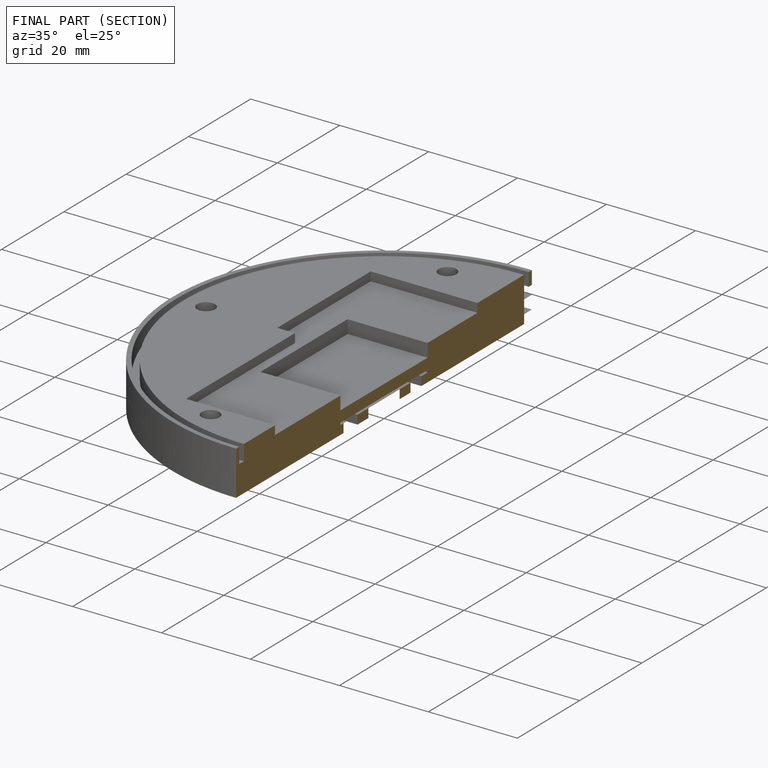
[diagram: finished part — half-section view (interior)]
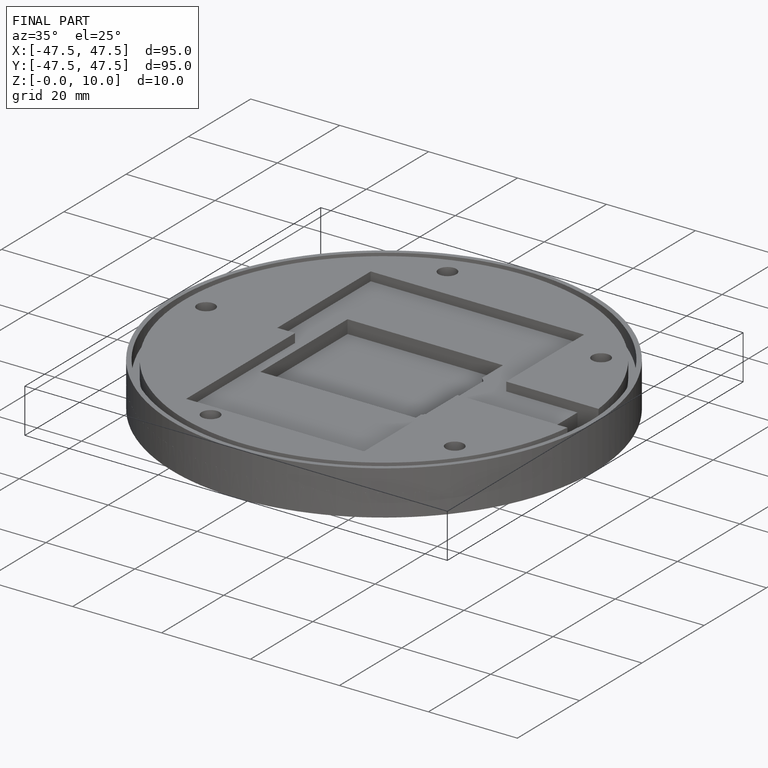
[diagram: finished part — iso view with bounding-box wireframe]
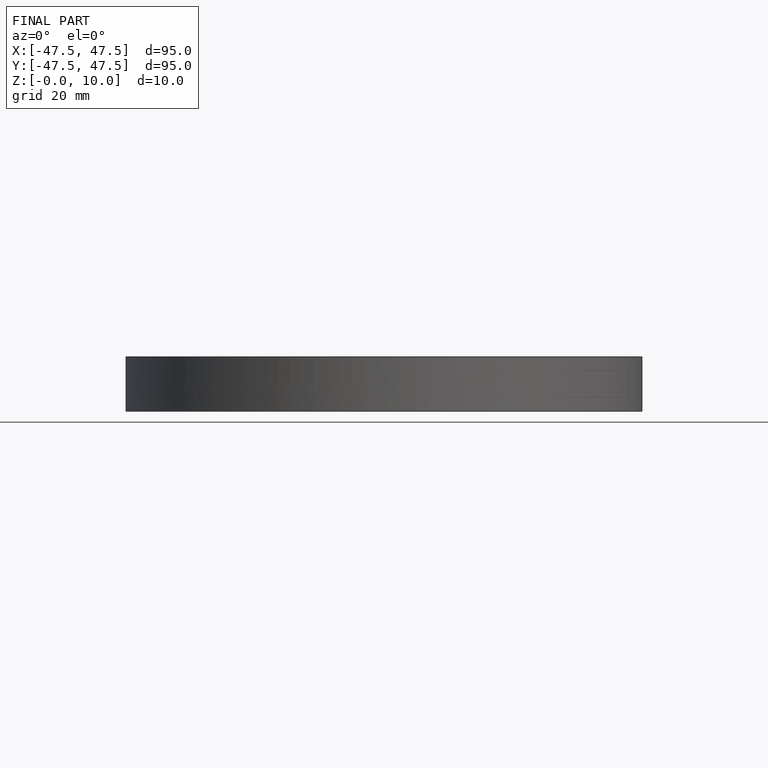
[diagram: finished part — front view with bounding-box wireframe]
